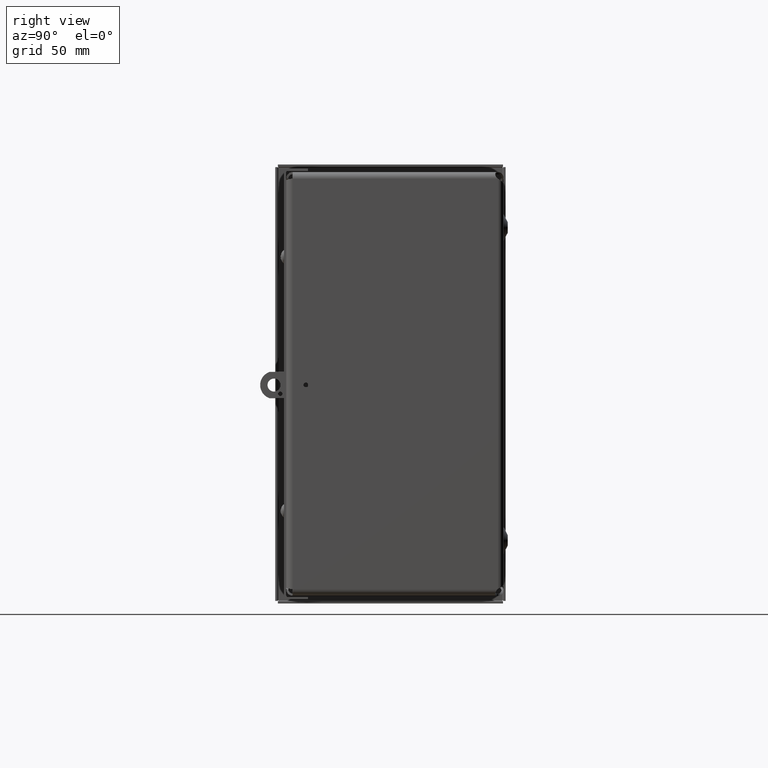
[diagram: clean part render]
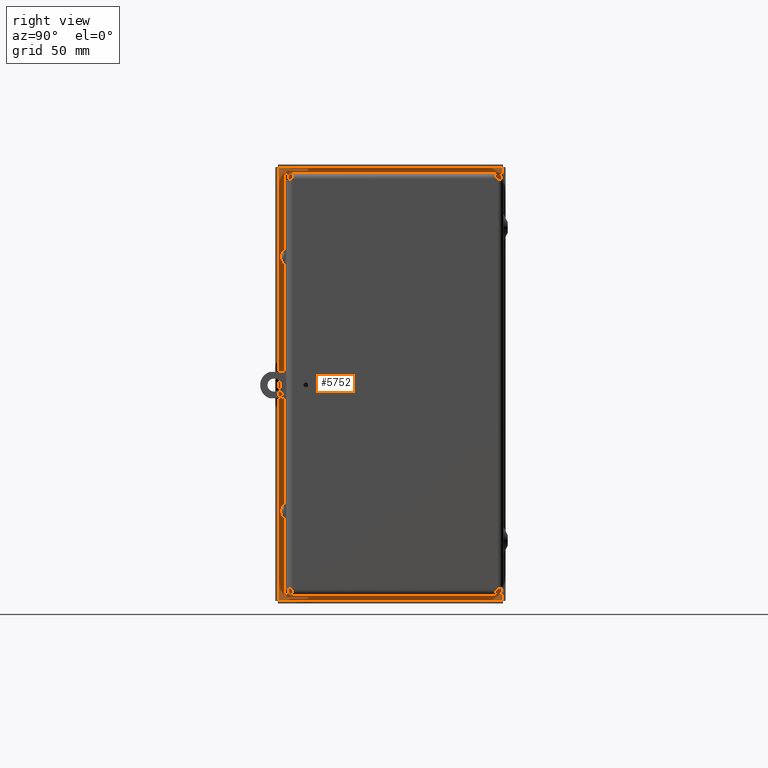
[diagram: same view with one face highlighted and labeled with its STEP entity id]
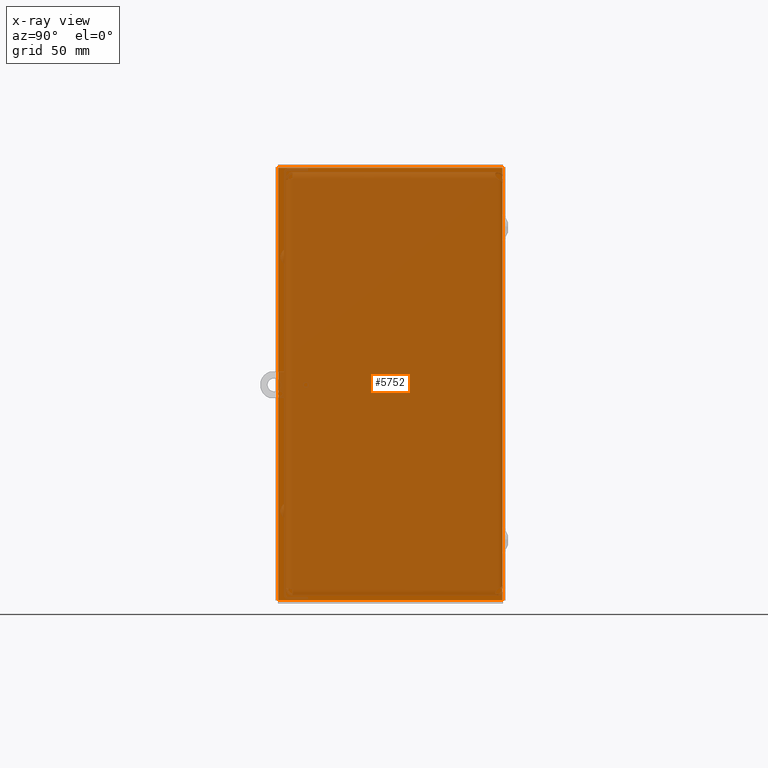
[diagram: x-ray of the same camera — body ghosted, the highlighted face saturated]
A machine part, right view. The second image highlights one B-rep face of the part: STEP entity #5752.
The next image is the same camera in x-ray: the body ghosted, the highlighted face saturated — about 96% of this face is hidden behind the body in this view.
In plain terms, the highlighted planar face has unit normal (1, 0, -0).
Its self-contained STEP definition (entity closure, byte-faithful):
#376=PLANE($,#6106);
#859=FACE_OUTER_BOUND($,#1218,.T.);
#1218=EDGE_LOOP($,(#4769,#4770,#4771,#4772));
#1899=LINE($,#10171,#2356);
#1914=LINE($,#10271,#2371);
#1929=LINE($,#10371,#2386);
#1943=LINE($,#10468,#2400);
#2356=VECTOR($,#7093,6.4385);
#2371=VECTOR($,#7122,12.4385);
#2386=VECTOR($,#7151,6.4385);
#2400=VECTOR($,#7179,12.4385);
#2761=VERTEX_POINT($,#10124);
#2762=VERTEX_POINT($,#10154);
#2772=VERTEX_POINT($,#10226);
#2782=VERTEX_POINT($,#10326);
#3431=EDGE_CURVE($,#2762,#2761,#1899,.T.);
#3450=EDGE_CURVE($,#2761,#2772,#1914,.T.);
#3469=EDGE_CURVE($,#2772,#2782,#1929,.T.);
#3487=EDGE_CURVE($,#2782,#2762,#1943,.T.);
#4769=ORIENTED_EDGE($,*,*,#3431,.T.);
#4770=ORIENTED_EDGE($,*,*,#3450,.T.);
#4771=ORIENTED_EDGE($,*,*,#3469,.T.);
#4772=ORIENTED_EDGE($,*,*,#3487,.T.);
#5752=ADVANCED_FACE($,(#859),#376,.T.);
#6106=AXIS2_PLACEMENT_3D($,#10469,#7180,#7181);
#7093=DIRECTION($,(2.17240999107883E-016,-1.,0.));
#7122=DIRECTION($,(1.,1.1244974657363E-016,0.));
#7151=DIRECTION($,(0.,1.,0.));
#7179=DIRECTION($,(-1.,-2.24899493147261E-016,0.));
#7180=DIRECTION('center_axis',(0.,0.,1.));
#7181=DIRECTION('ref_axis',(1.,0.,0.));
#10124=CARTESIAN_POINT('',(-5.90675,-3.53175,0.062));
#10154=CARTESIAN_POINT('',(-5.90675,2.90675,0.062));
#10171=CARTESIAN_POINT($,(-5.90675,-1.922125,0.062));
#10226=CARTESIAN_POINT('',(6.53175,-3.53175,0.062));
#10271=CARTESIAN_POINT($,(3.422125,-3.53175,0.062));
#10326=CARTESIAN_POINT('',(6.53175,2.90675,0.062));
#10371=CARTESIAN_POINT($,(6.53175,1.297125,0.062));
#10468=CARTESIAN_POINT($,(-2.797125,2.90675,0.062));
#10469=CARTESIAN_POINT('Origin',(0.312500000000001,-0.3125,0.062));